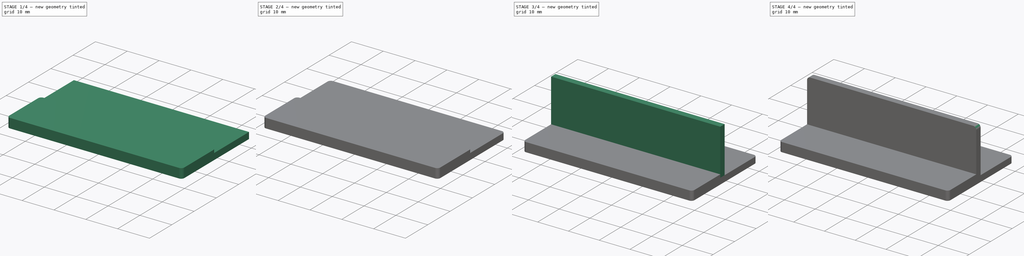
[diagram: build sequence overview — one tinted view per stage of 4, left to right]
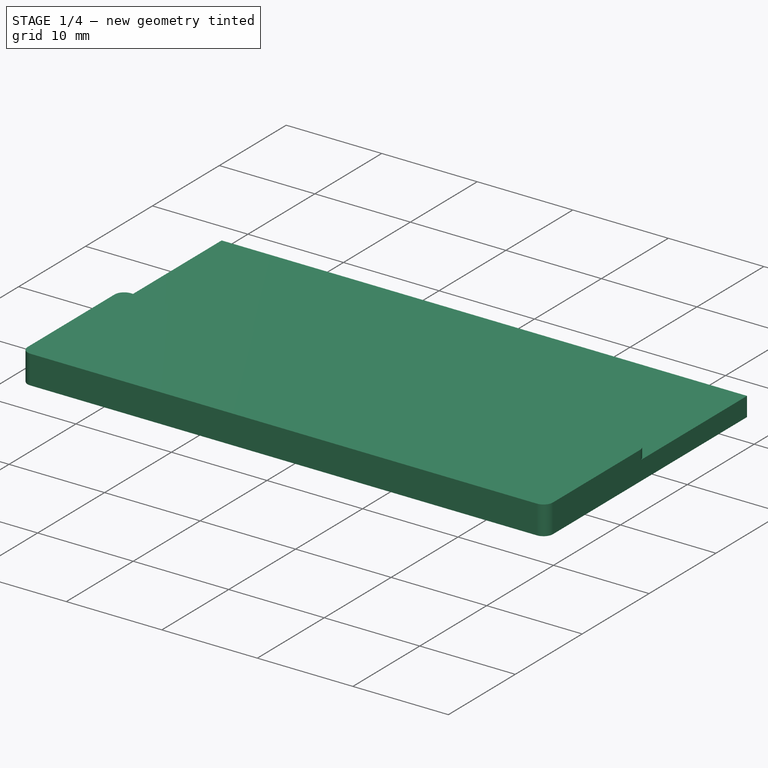
[diagram: stage 1 of 4 — iso view after this stage's code; geometry added in this stage tinted green]
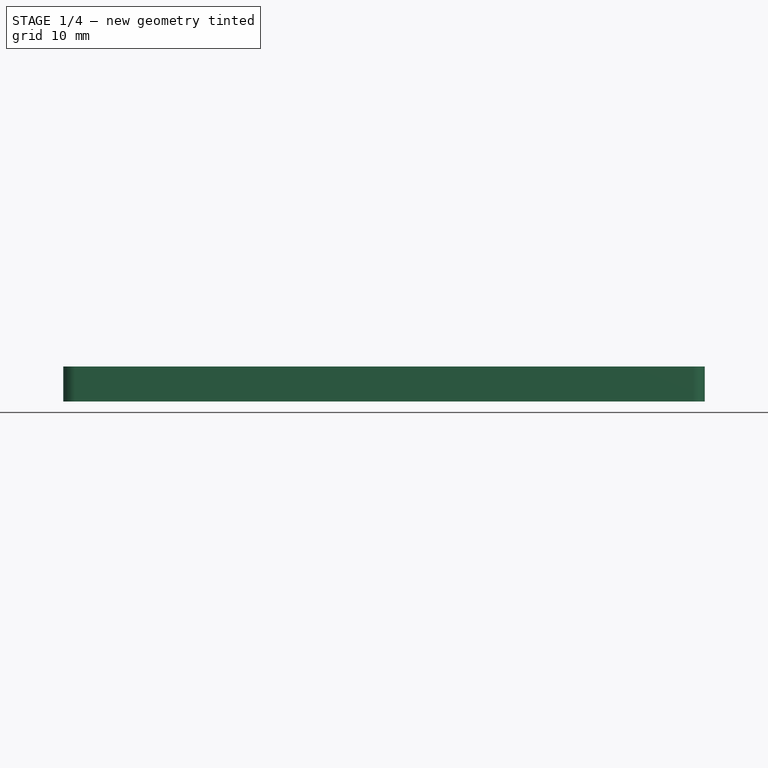
[diagram: stage 1 of 4 — front view after this stage's code; geometry added in this stage tinted green]
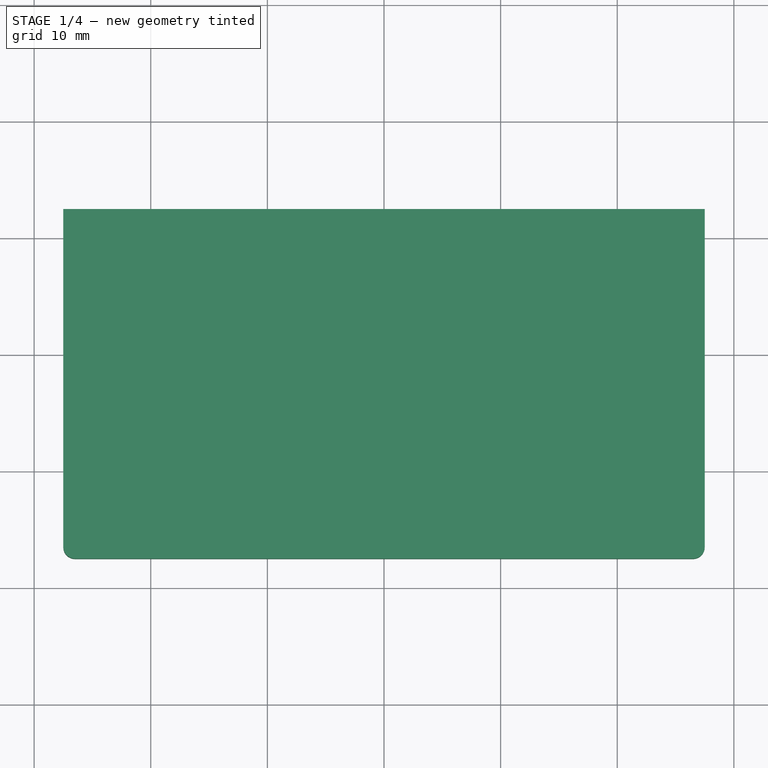
[diagram: stage 1 of 4 — top view after this stage's code; geometry added in this stage tinted green]
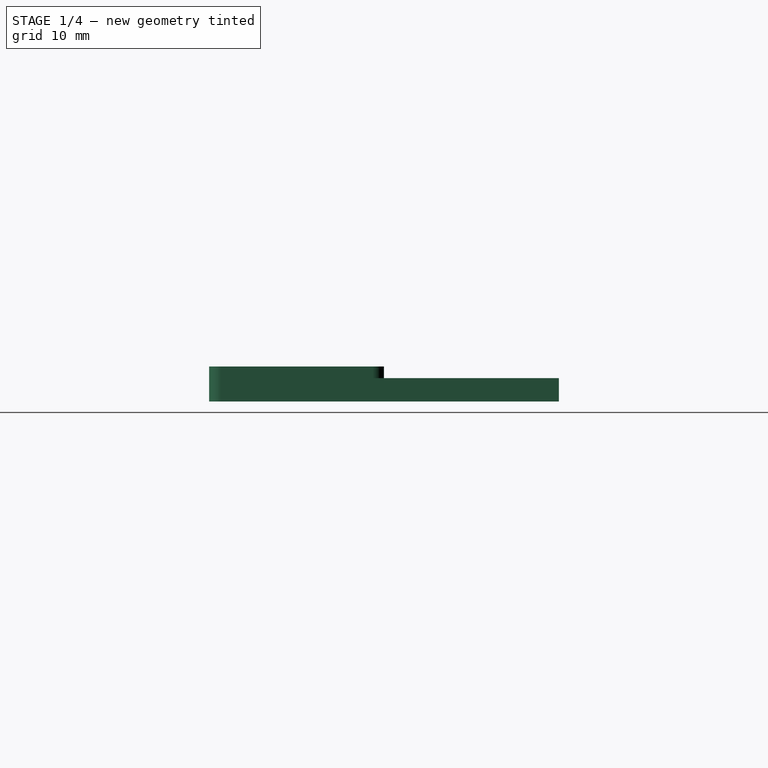
[diagram: stage 1 of 4 — right view after this stage's code; geometry added in this stage tinted green]
FCSTD DOCUMENT  (FreeCAD 0.21R33771 (Git))
Label: Battery_Brackets
License: All rights reserved
LicenseURL: http://en.wikipedia.org/wiki/All_rights_reserved
objects: Sketcher::SketchObject×6, PartDesign::Pad×4, PartDesign::Fillet×3, PartDesign::Body×3, App::Part×3, PartDesign::Pocket×2, PartDesign::Chamfer×2
note: 31 computed .brp shape members not serialized (recipe doc carries the construction recipe); baked Part::Feature solids carry a one-line shape summary decoded from their .brp

FEATURE [PartDesign::Body] Body  label="Battery_Brackets_Edge_Body"
  Group = -> [Sketch,Pad,Sketch001,Pad001,Fillet,Sketch002,Pocket,Chamfer]
  Origin = -> Origin001
  Tip = -> Chamfer
FEATURE [App::Part] Part  label="Battery_Brackets_Edge_Part"
  Group = -> [Body]
  Origin = -> Origin
FEATURE [Sketcher::SketchObject] Sketch003
  FullyConstrained = true
  MapMode = 5
  Support = -> [XY_Plane003]
  sketch-geometry (6):
    g0: LineSegment StartX=-27.5 StartY=22.5 StartZ=0 EndX=27.5 EndY=22.5 EndZ=0
    g1: LineSegment StartX=27.5 StartY=22.5 StartZ=0 EndX=27.5 EndY=-3.5 EndZ=0
    g2: LineSegment StartX=23.5 StartY=-7.5 StartZ=0 EndX=-23.5 EndY=-7.5 EndZ=0
    g3: LineSegment StartX=-27.5 StartY=-3.5 StartZ=0 EndX=-27.5 EndY=22.5 EndZ=0
    g4: ArcOfCircle CenterX=-23.5 CenterY=-3.5 CenterZ=0 NormalX=0 NormalY=0 NormalZ=1 AngleXU=0 Radius=4 StartAngle=3.14159 EndAngle=4.71239
    g5: ArcOfCircle CenterX=23.5 CenterY=-3.5 CenterZ=0 NormalX=0 NormalY=0 NormalZ=1 AngleXU=0 Radius=4 StartAngle=4.71239 EndAngle=6.28319
  constraints (16):
    c: Coincident(g0,g1)
    c: Coincident(g3,g0)
    c: Horizontal(g0)
    c: Horizontal(g2)
    c: Vertical(g1)
    c: Vertical(g3)
    c: DistanceX(g0,g0) = 55
    c: Tangent(g3,g4) = 1.5708
    c: Tangent(g2,g4) = 1.5708
    c: Tangent(g1,g5) = 1.5708
    c: Tangent(g2,g5) = 1.5708
    c: Diameter(g5) = 8
    c: Diameter(g4) = 8
    c: DistanceY(g2,g0) = 30
    c: DistanceX(g0,g-1) = 27.5
    c: DistanceY(g2,g-1) = 7.5
FEATURE [PartDesign::Pad] Pad002  label="Base_Pad001"
  Direction = (0,0,1)
  Length = 2
  Length2 = 10
  Profile = -> Sketch003
  ReferenceAxis = -> Sketch003 [N_Axis]
  Type = 0
FEATURE [PartDesign::Body] Body001  label="Battery_Brackets_Flat_Body"
  Group = -> [Sketch003,Pad002,Sketch004,Pocket001,Chamfer001,Fillet001]
  Origin = -> Origin003
  Tip = -> Fillet001
FEATURE [App::Part] Part001  label="Battery_Brackets_Flat_Part"
  Group = -> [Body001]
  Origin = -> Origin002
FEATURE [Sketcher::SketchObject] Sketch005
  FullyConstrained = true
  MapMode = 5
  Support = -> [XY_Plane005]
  sketch-geometry (4):
    g0: LineSegment StartX=-27.5 StartY=7.5 StartZ=0 EndX=27.5 EndY=7.5 EndZ=0
    g1: LineSegment StartX=27.5 StartY=7.5 StartZ=0 EndX=27.5 EndY=-7.5 EndZ=0
    g2: LineSegment StartX=27.5 StartY=-7.5 StartZ=0 EndX=-27.5 EndY=-7.5 EndZ=0
    g3: LineSegment StartX=-27.5 StartY=-7.5 StartZ=0 EndX=-27.5 EndY=7.5 EndZ=0
  constraints (11):
    c: Coincident(g0,g1)
    c: Coincident(g1,g2)
    c: Coincident(g2,g3)
    c: Coincident(g3,g0)
    c: Horizontal(g0)
    c: Horizontal(g2)
    c: Vertical(g1)
    c: Vertical(g3)
    c: DistanceX(g2,g2) = 55
    c: DistanceY(g1,g1) = 15
    c: Symmetric(g0,g2,g-1)
FEATURE [PartDesign::Pad] Pad003  label="Shim_Pad"
  Direction = (0,0,1)
  Length = 3
  Length2 = 10
  Profile = -> Sketch005
  ReferenceAxis = -> Sketch005 [N_Axis]
  Type = 0
FEATURE [PartDesign::Fillet] Fillet002  label="Shim_Fillet"
  Base = -> Pad003 [Edge8,Edge5,Edge1,Edge2]
  BaseFeature = -> Pad003
  Radius = 1
  SupportTransform = false
  UseAllEdges = false
FEATURE [PartDesign::Body] Body002  label="Battery_Brackets_Flat_Shim_Body"
  Group = -> [Sketch005,Pad003,Fillet002]
  Origin = -> Origin005
  Tip = -> Fillet002
FEATURE [App::Part] Part002  label="Battery_Brackets_Flat_Shim_Part"
  Group = -> [Body002]
  Origin = -> Origin004
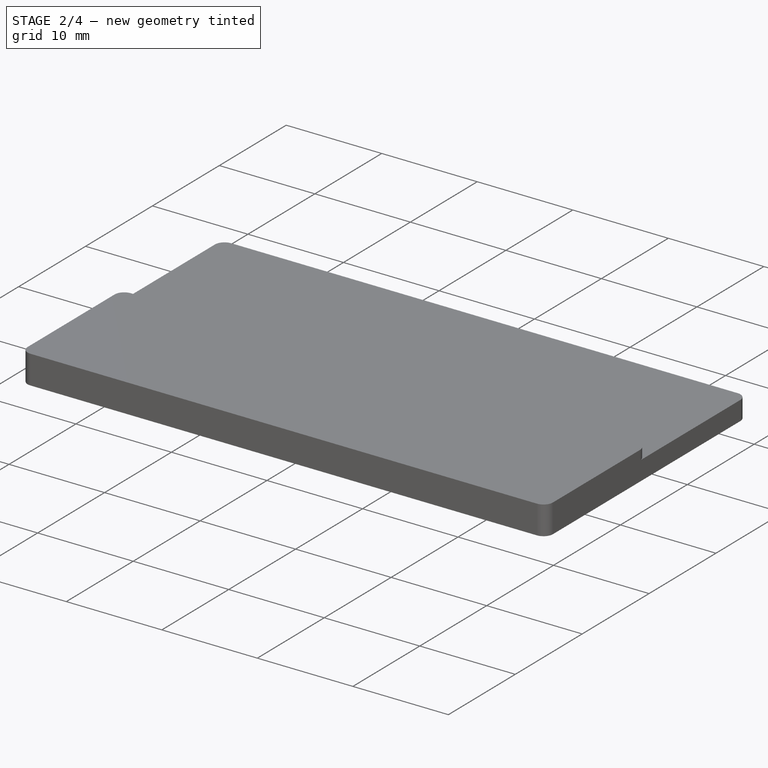
[diagram: stage 2 of 4 — iso view after this stage's code; geometry added in this stage tinted green]
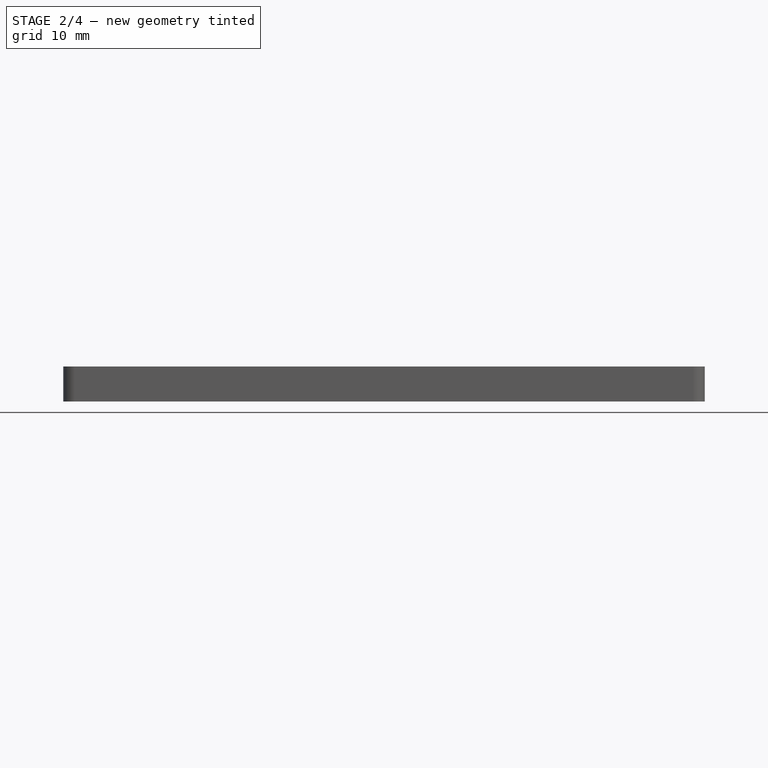
[diagram: stage 2 of 4 — front view after this stage's code; geometry added in this stage tinted green]
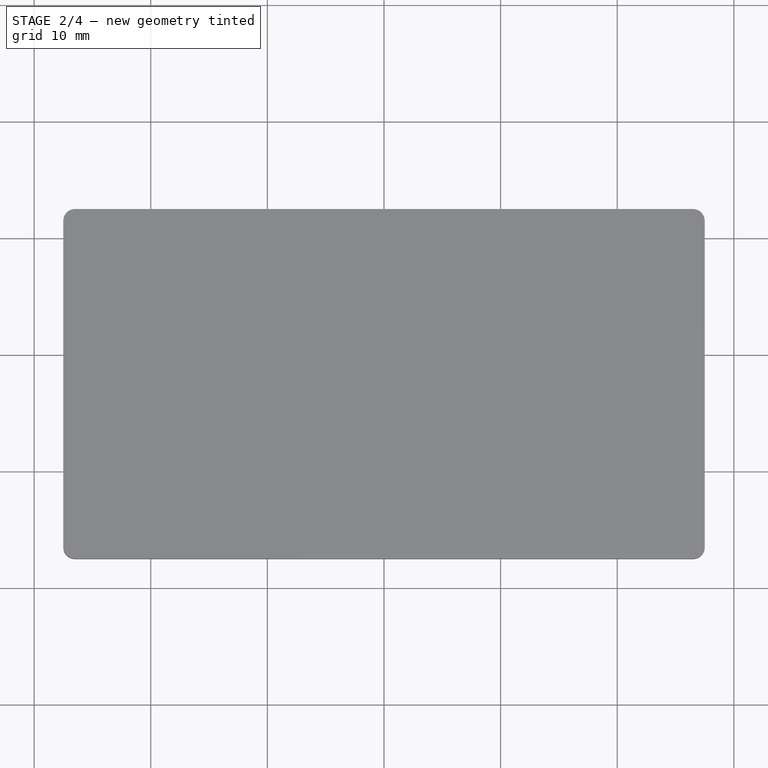
[diagram: stage 2 of 4 — top view after this stage's code; geometry added in this stage tinted green]
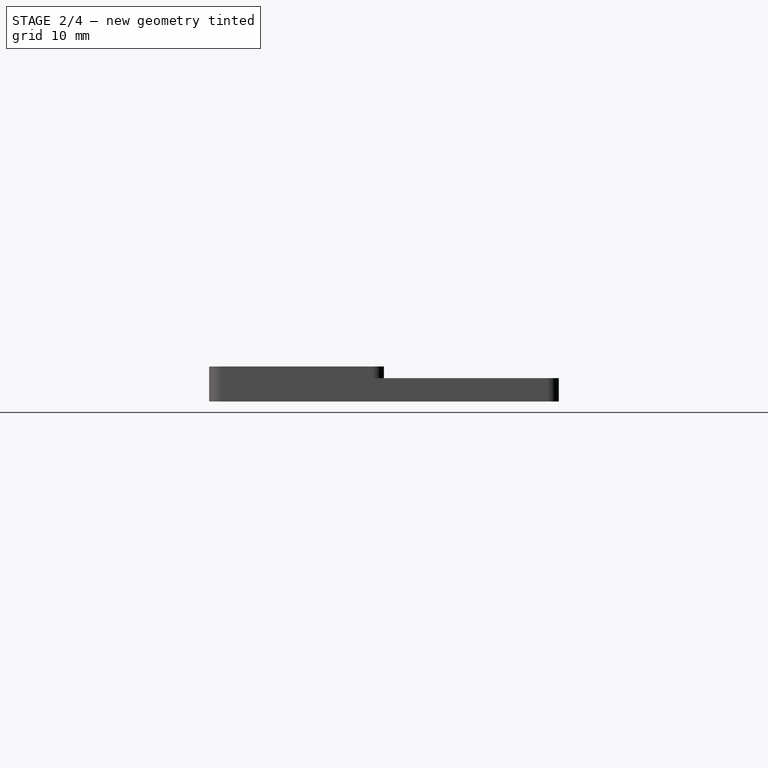
[diagram: stage 2 of 4 — right view after this stage's code; geometry added in this stage tinted green]
FEATURE [Sketcher::SketchObject] Sketch004
  FullyConstrained = true
  MapMode = 5
  Placement = pos=(0,0,2) rot=(0,0,1;0rad)
  Support = -> [Pad002]
  sketch-geometry (2):
    g0: Circle CenterX=-20 CenterY=0 CenterZ=0 NormalX=0 NormalY=0 NormalZ=1 AngleXU=0 Radius=2.5
    g1: Circle CenterX=20 CenterY=0 CenterZ=0 NormalX=0 NormalY=0 NormalZ=1 AngleXU=0 Radius=2.5
  constraints (6):
    c: PointOnObject(g0,g-1)
    c: PointOnObject(g1,g-1)
    c: Equal(g0,g1)
    c: Diameter(g0) = 5
    c: DistanceX(g0,g-1) = 20
    c: DistanceX(g-1,g1) = 20
FEATURE [PartDesign::Pocket] Pocket001  label="Hole_Pockets001"
  BaseFeature = -> Pad002
  Direction = (0,0,-1)
  Length = 2
  Length2 = 5
  Profile = -> Sketch004
  ReferenceAxis = -> Sketch004 [N_Axis]
  Type = 0
FEATURE [PartDesign::Chamfer] Chamfer001  label="Hole_Chamfers001"
  Angle = 45
  Base = -> Pocket001 [Edge19,Edge20]
  BaseFeature = -> Pocket001
  ChamferType = 0
  FlipDirection = false
  Size = 1
  Size2 = 1
  SupportTransform = false
  UseAllEdges = false
FEATURE [PartDesign::Fillet] Fillet001  label="Base_Fillet"
  Base = -> Chamfer001 [Edge16,Edge12]
  BaseFeature = -> Chamfer001
  Radius = 1
  SupportTransform = false
  UseAllEdges = false
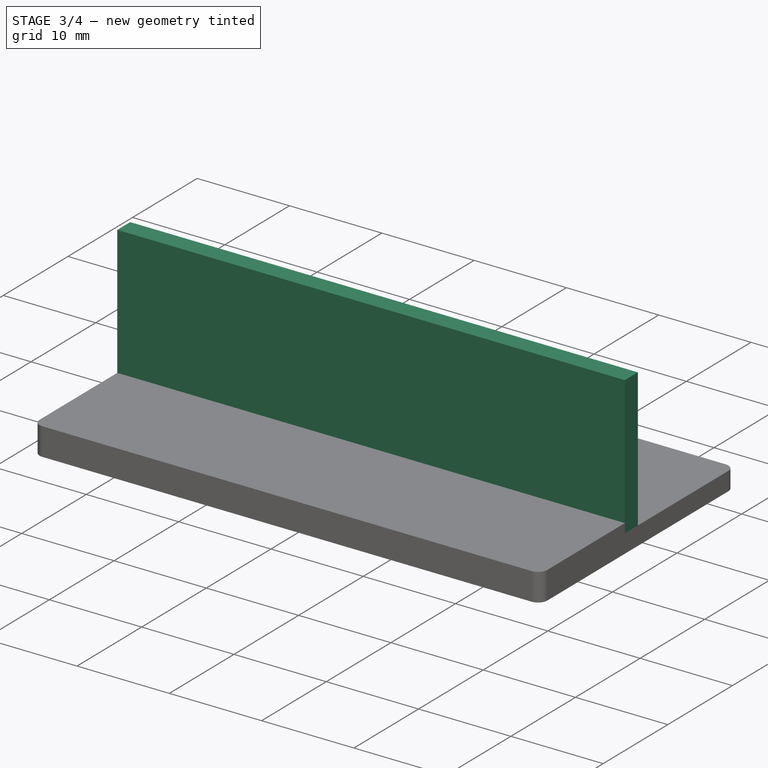
[diagram: stage 3 of 4 — iso view after this stage's code; geometry added in this stage tinted green]
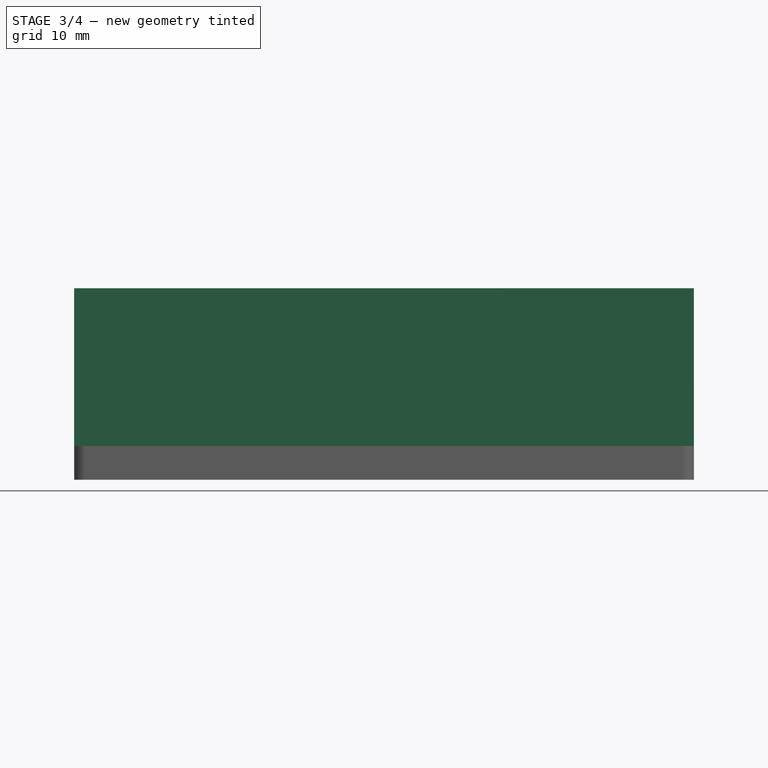
[diagram: stage 3 of 4 — front view after this stage's code; geometry added in this stage tinted green]
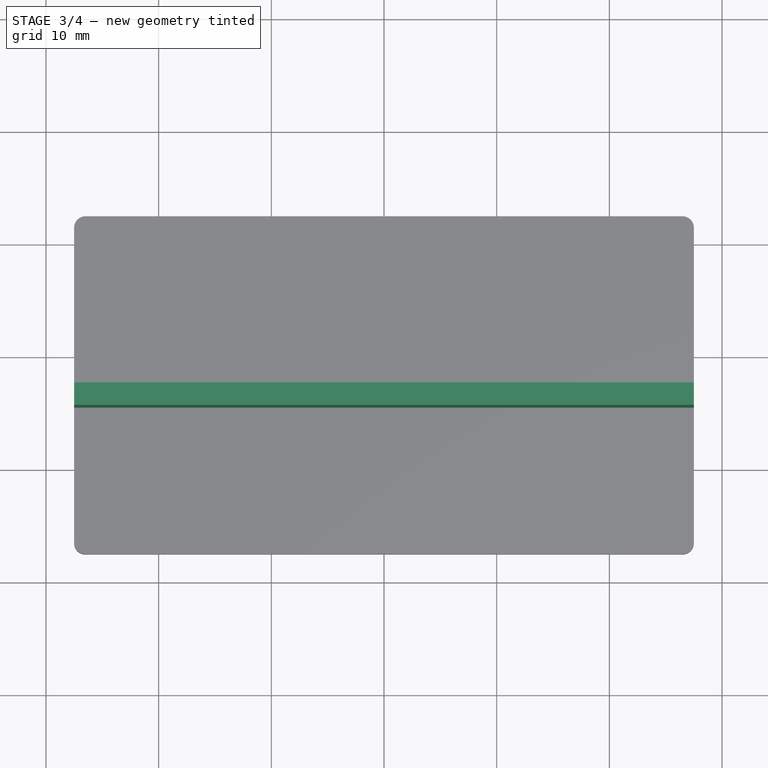
[diagram: stage 3 of 4 — top view after this stage's code; geometry added in this stage tinted green]
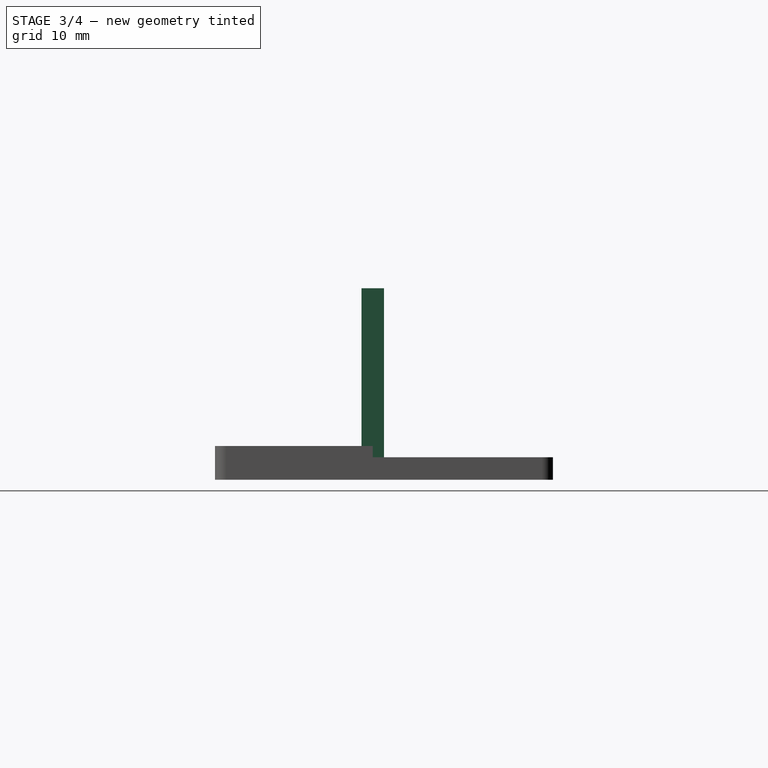
[diagram: stage 3 of 4 — right view after this stage's code; geometry added in this stage tinted green]
FEATURE [Sketcher::SketchObject] Sketch
  FullyConstrained = true
  MapMode = 5
  Support = -> [XY_Plane001]
  sketch-geometry (6):
    g0: LineSegment StartX=-27.5 StartY=7.5 StartZ=0 EndX=27.5 EndY=7.5 EndZ=0
    g1: LineSegment StartX=27.5 StartY=7.5 StartZ=0 EndX=27.5 EndY=-3.5 EndZ=0
    g2: LineSegment StartX=23.5 StartY=-7.5 StartZ=0 EndX=-23.5 EndY=-7.5 EndZ=0
    g3: LineSegment StartX=-27.5 StartY=-3.5 StartZ=0 EndX=-27.5 EndY=7.5 EndZ=0
    g4: ArcOfCircle CenterX=-23.5 CenterY=-3.5 CenterZ=0 NormalX=0 NormalY=0 NormalZ=1 AngleXU=0 Radius=4 StartAngle=3.14159 EndAngle=4.71239
    g5: ArcOfCircle CenterX=23.5 CenterY=-3.5 CenterZ=0 NormalX=0 NormalY=0 NormalZ=1 AngleXU=0 Radius=4 StartAngle=4.71239 EndAngle=6.28319
  constraints (16):
    c: Coincident(g0,g1)
    c: Coincident(g3,g0)
    c: Horizontal(g0)
    c: Horizontal(g2)
    c: Vertical(g1)
    c: Vertical(g3)
    c: DistanceX(g0,g0) = 55
    c: Tangent(g3,g4) = 1.5708
    c: Tangent(g2,g4) = 1.5708
    c: Tangent(g2,g5) = 1.5708
    c: Tangent(g1,g5) = 1.5708
    c: Diameter(g5) = 8
    c: Diameter(g4) = 8
    c: DistanceX(g0,g-1) = 27.5
    c: DistanceY(g2,g0) = 15
    c: DistanceY(g-1,g0) = 7.5
FEATURE [PartDesign::Pad] Pad  label="Base_Pad"
  Direction = (0,0,1)
  Length = 2
  Length2 = 10
  Profile = -> Sketch
  ReferenceAxis = -> Sketch [N_Axis]
  Type = 0
FEATURE [Sketcher::SketchObject] Sketch001
  FullyConstrained = true
  MapMode = 5
  Placement = pos=(0,0,2) rot=(0,0,1;0rad)
  Support = -> [Pad]
  sketch-geometry (4):
    g0: LineSegment StartX=-27.5 StartY=7.5 StartZ=0 EndX=27.5 EndY=7.5 EndZ=0
    g1: LineSegment StartX=27.5 StartY=7.5 StartZ=0 EndX=27.5 EndY=5.5 EndZ=0
    g2: LineSegment StartX=27.5 StartY=5.5 StartZ=0 EndX=-27.5 EndY=5.5 EndZ=0
    g3: LineSegment StartX=-27.5 StartY=5.5 StartZ=0 EndX=-27.5 EndY=7.5 EndZ=0
  constraints (12):
    c: Coincident(g0,g1)
    c: Coincident(g1,g2)
    c: Coincident(g2,g3)
    c: Coincident(g3,g0)
    c: Horizontal(g0)
    c: Horizontal(g2)
    c: Vertical(g1)
    c: Vertical(g3)
    c: DistanceX(g0,g0) = 55
    c: DistanceY(g1,g1) = 2
    c: DistanceX(g2,g-1) = 27.5
    c: DistanceY(g-1,g0) = 7.5
FEATURE [PartDesign::Pad] Pad001  label="Edge_Pad"
  BaseFeature = -> Pad
  Direction = (0,0,1)
  Length = 15
  Length2 = 10
  Profile = -> Sketch001
  ReferenceAxis = -> Sketch001 [N_Axis]
  Type = 0
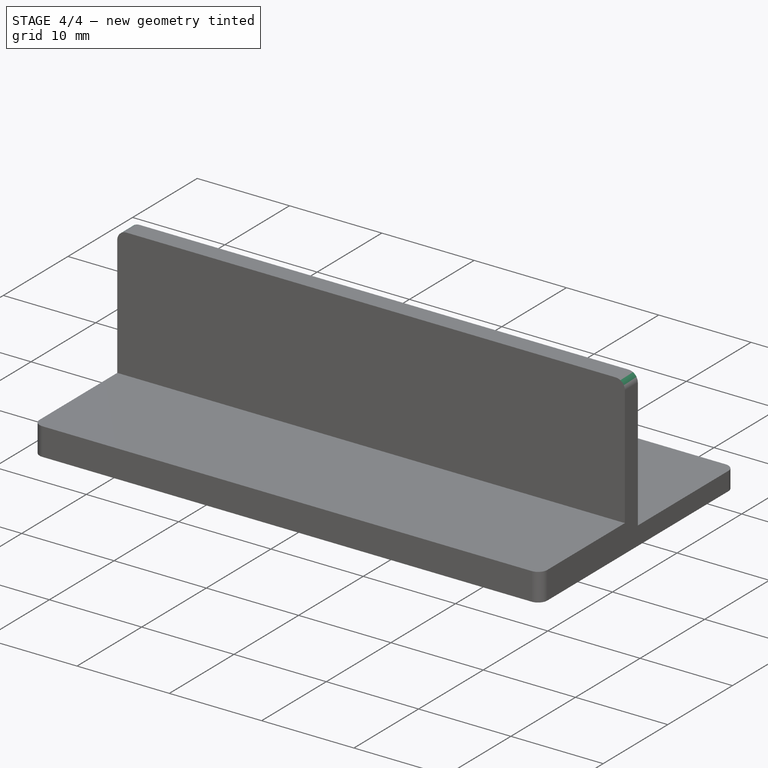
[diagram: stage 4 of 4 — iso view after this stage's code; geometry added in this stage tinted green]
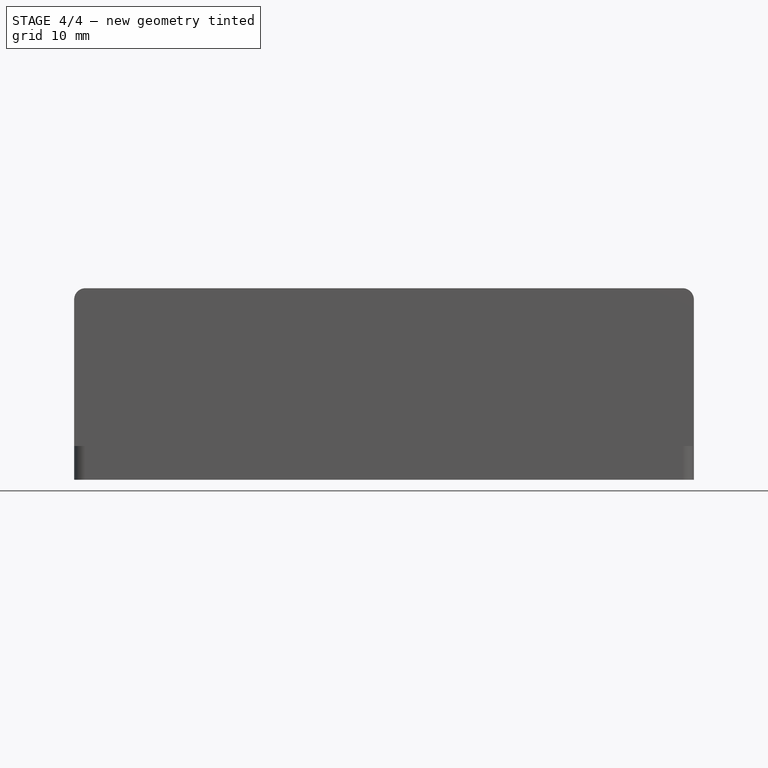
[diagram: stage 4 of 4 — front view after this stage's code; geometry added in this stage tinted green]
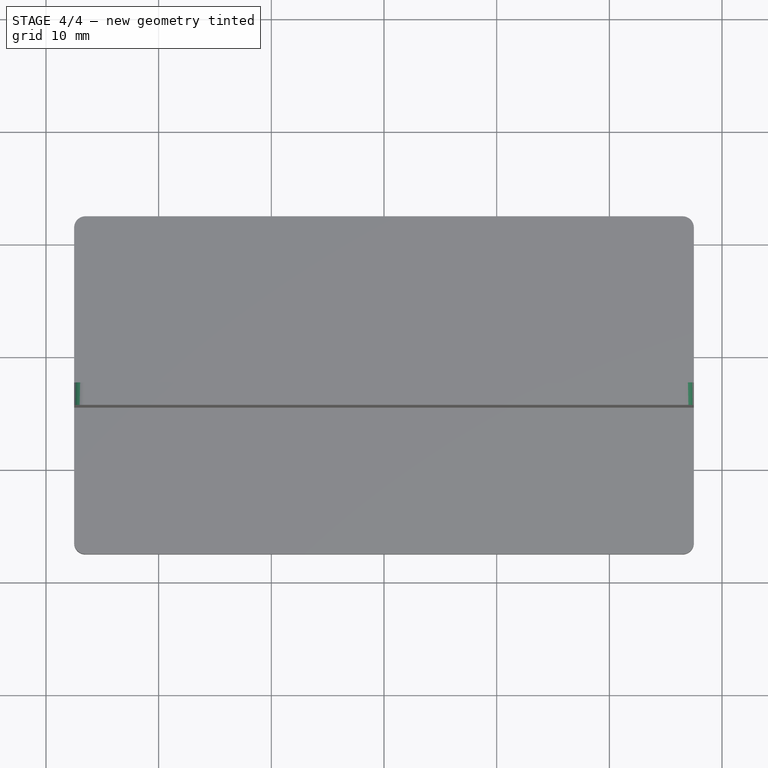
[diagram: stage 4 of 4 — top view after this stage's code; geometry added in this stage tinted green]
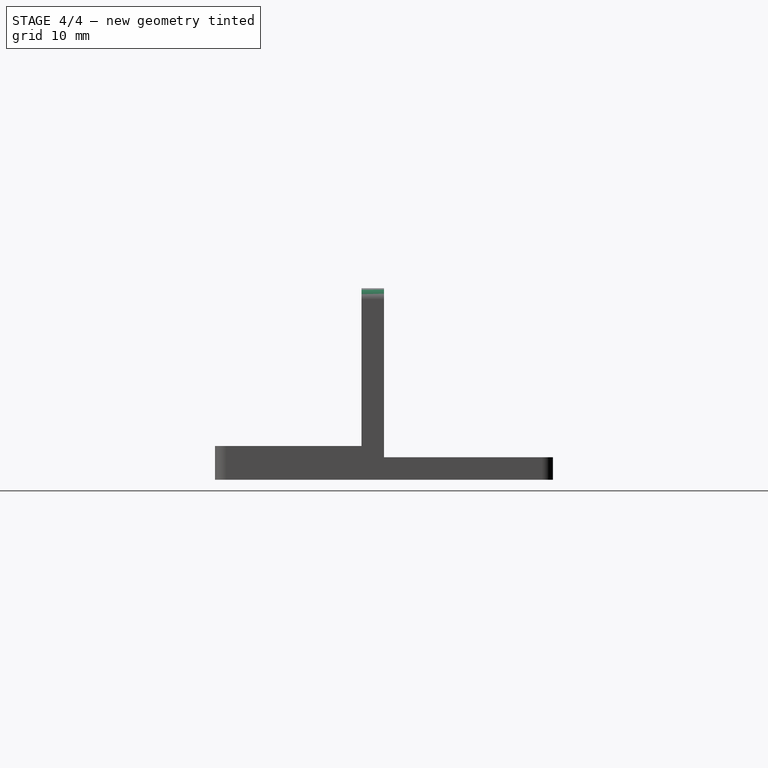
[diagram: stage 4 of 4 — right view after this stage's code; geometry added in this stage tinted green]
FEATURE [PartDesign::Fillet] Fillet  label="Edge_Fillet"
  Base = -> Pad001 [Edge21,Edge29]
  BaseFeature = -> Pad001
  Radius = 1
  SupportTransform = false
  UseAllEdges = false
FEATURE [Sketcher::SketchObject] Sketch002
  FullyConstrained = true
  MapMode = 5
  Placement = pos=(0,0,2) rot=(0,0,1;0rad)
  Support = -> [Fillet]
  sketch-geometry (2):
    g0: Circle CenterX=-20 CenterY=0 CenterZ=0 NormalX=0 NormalY=0 NormalZ=1 AngleXU=0 Radius=2.5
    g1: Circle CenterX=20 CenterY=0 CenterZ=0 NormalX=0 NormalY=0 NormalZ=1 AngleXU=0 Radius=2.5
  constraints (6):
    c: PointOnObject(g0,g-1)
    c: PointOnObject(g1,g-1)
    c: Equal(g0,g1)
    c: Diameter(g0) = 5
    c: DistanceX(g0,g-1) = 20
    c: DistanceX(g-1,g1) = 20
FEATURE [PartDesign::Pocket] Pocket  label="Hole_Pockets"
  BaseFeature = -> Fillet
  Direction = (0,0,-1)
  Length = 2
  Length2 = 5
  Profile = -> Sketch002
  ReferenceAxis = -> Sketch002 [N_Axis]
  Type = 0
FEATURE [PartDesign::Chamfer] Chamfer  label="Hole_Chamfers"
  Angle = 45
  Base = -> Pocket [Edge28,Edge27]
  BaseFeature = -> Pocket
  ChamferType = 0
  FlipDirection = false
  Size = 1
  Size2 = 1
  SupportTransform = false
  UseAllEdges = false
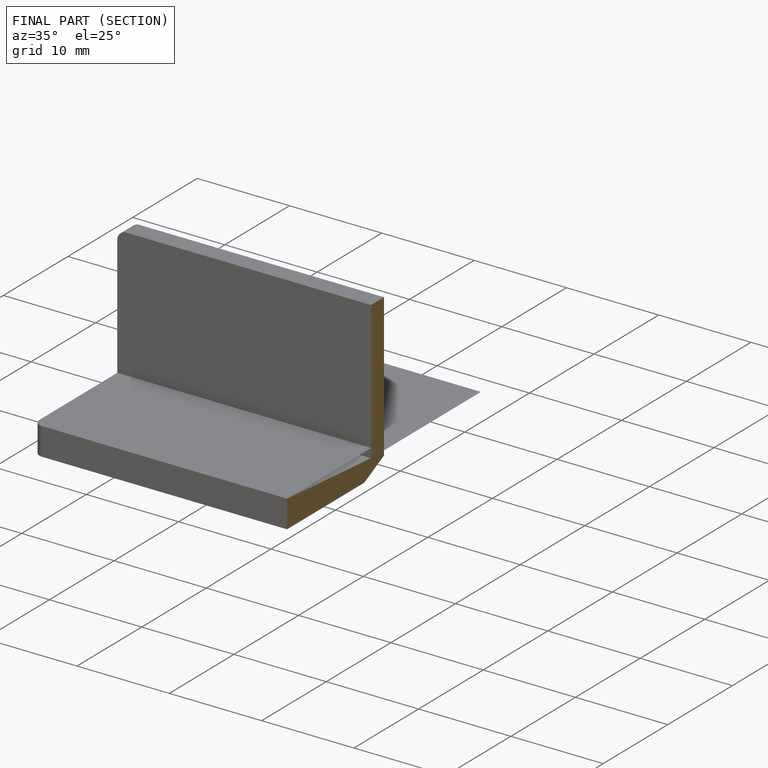
[diagram: finished part — half-section view (interior)]
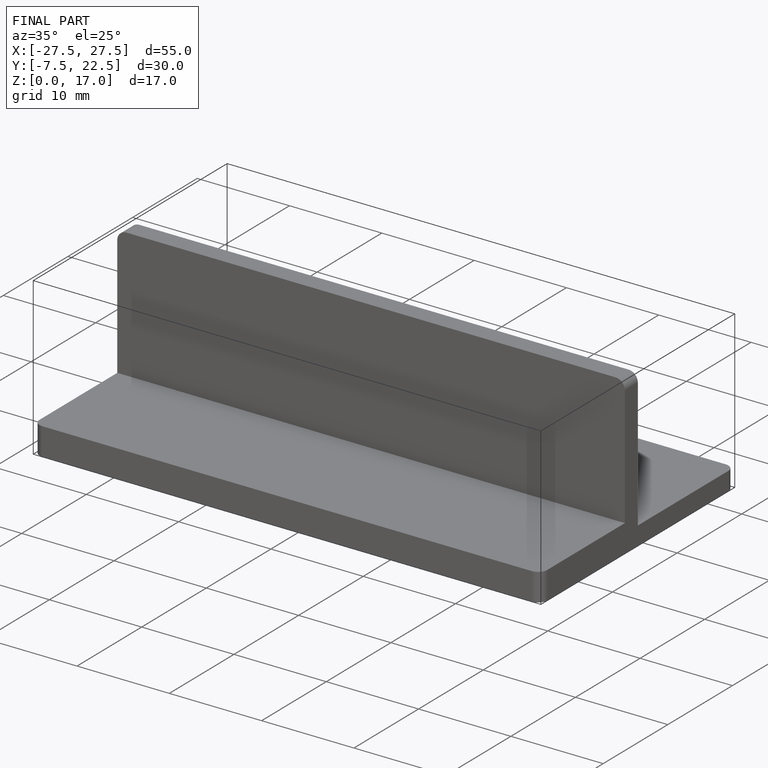
[diagram: finished part — iso view with bounding-box wireframe]
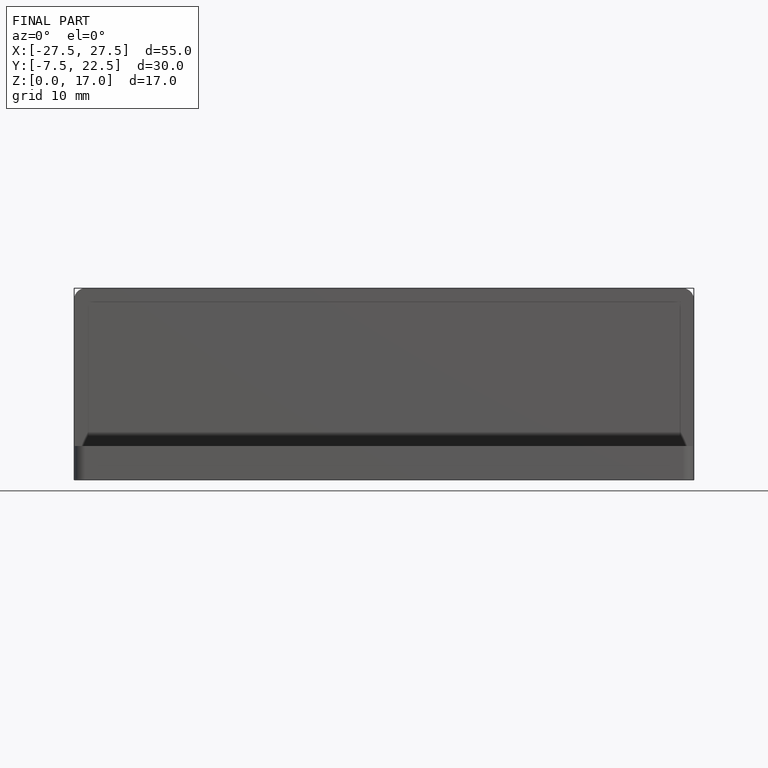
[diagram: finished part — front view with bounding-box wireframe]
